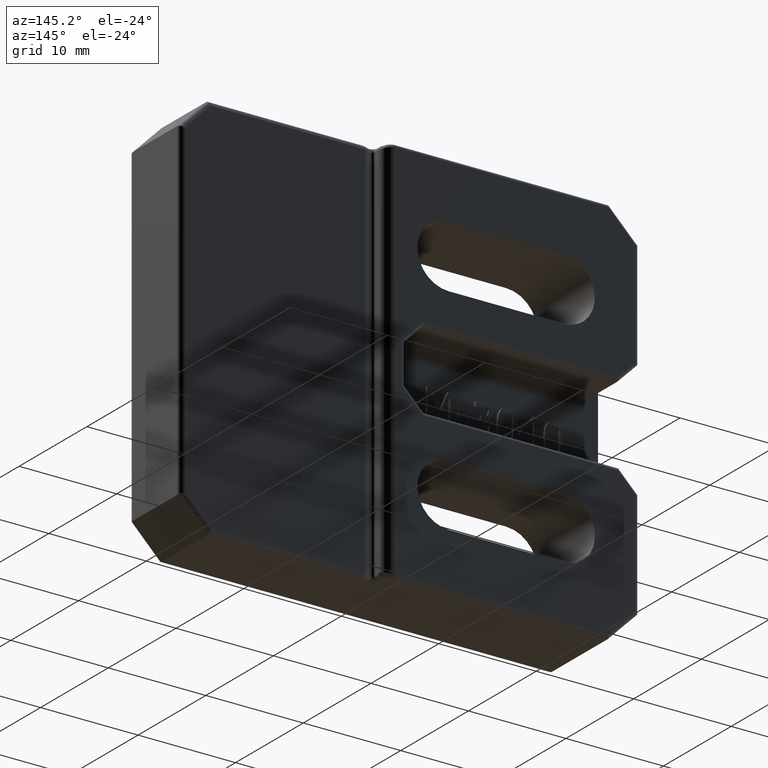
[diagram: clean part render]
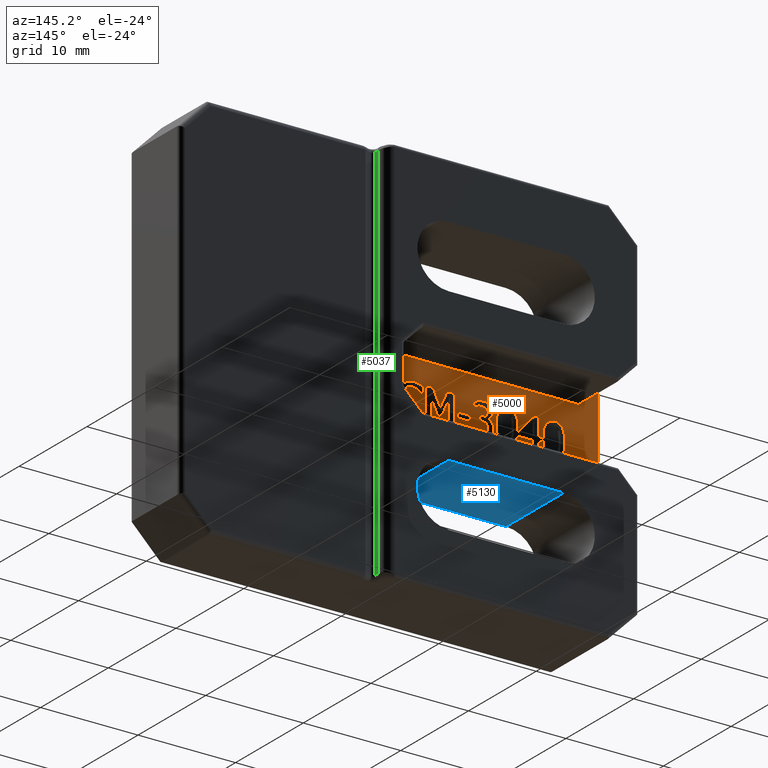
[diagram: same view with three faces highlighted in distinct colors, each labeled with its STEP entity id]
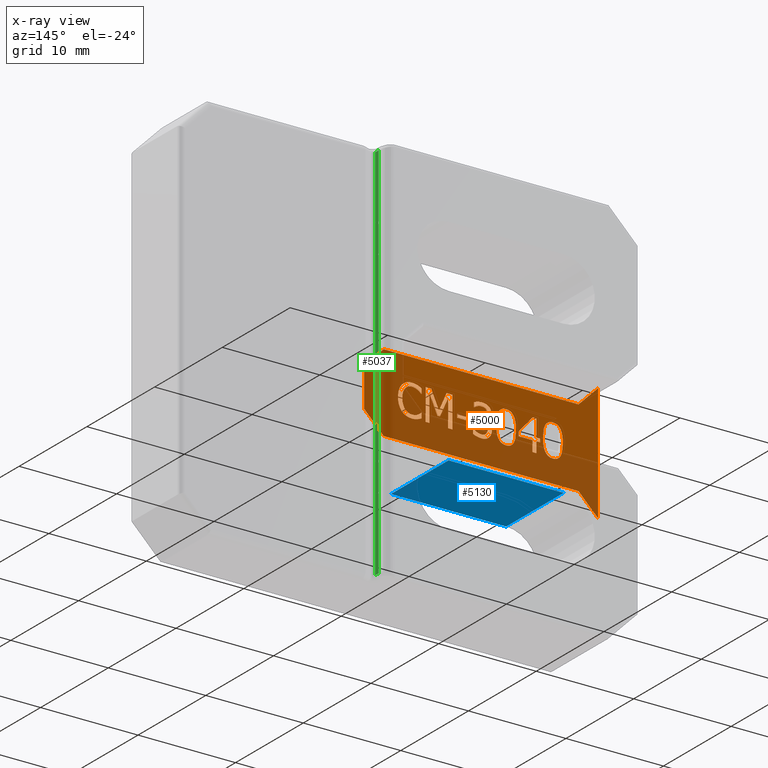
[diagram: x-ray of the same camera — body ghosted, the three highlighted faces saturated]
A machine part, auxiliary view with three faces highlighted in distinct colors.
The next image is the same camera in x-ray (body ghosted, the three faces saturated) — at least one of them is partly hidden behind the body in this view.
Their STEP definitions:

[orange] entity #5000 — the highlighted planar face has unit normal (0, -1, 0).
#65=FACE_BOUND('',#1956,.T.);
#66=FACE_BOUND('',#1957,.T.);
#67=FACE_BOUND('',#1958,.T.);
#68=FACE_BOUND('',#1959,.T.);
#69=FACE_BOUND('',#1960,.T.);
#70=FACE_BOUND('',#1961,.T.);
#71=FACE_BOUND('',#1962,.T.);
#97=B_SPLINE_CURVE_WITH_KNOTS('',2,(#6919,#6920,#6921,#6922),
 .UNSPECIFIED.,.F.,.F.,(3,1,3),(0.,1.,2.),.UNSPECIFIED.);
#99=B_SPLINE_CURVE_WITH_KNOTS('',2,(#6940,#6941,#6942,#6943),
 .UNSPECIFIED.,.F.,.F.,(3,1,3),(0.,1.,2.),.UNSPECIFIED.);
#101=B_SPLINE_CURVE_WITH_KNOTS('',2,(#6959,#6960,#6961,#6962),
 .UNSPECIFIED.,.F.,.F.,(3,1,3),(0.,1.,2.),.UNSPECIFIED.);
#103=B_SPLINE_CURVE_WITH_KNOTS('',2,(#6977,#6978,#6979,#6980),
 .UNSPECIFIED.,.F.,.F.,(3,1,3),(0.,1.,2.),.UNSPECIFIED.);
#121=B_SPLINE_CURVE_WITH_KNOTS('',2,(#7233,#7234,#7235,#7236),
 .UNSPECIFIED.,.F.,.F.,(3,1,3),(0.,1.,2.),.UNSPECIFIED.);
#123=B_SPLINE_CURVE_WITH_KNOTS('',2,(#7254,#7255,#7256,#7257),
 .UNSPECIFIED.,.F.,.F.,(3,1,3),(0.,1.,2.),.UNSPECIFIED.);
#125=B_SPLINE_CURVE_WITH_KNOTS('',2,(#7273,#7274,#7275,#7276),
 .UNSPECIFIED.,.F.,.F.,(3,1,3),(0.,1.,2.),.UNSPECIFIED.);
#127=B_SPLINE_CURVE_WITH_KNOTS('',2,(#7291,#7292,#7293,#7294),
 .UNSPECIFIED.,.F.,.F.,(3,1,3),(0.,1.,2.),.UNSPECIFIED.);
#129=B_SPLINE_CURVE_WITH_KNOTS('',2,(#7335,#7336,#7337,#7338),
 .UNSPECIFIED.,.F.,.F.,(3,1,3),(0.,1.,2.),.UNSPECIFIED.);
#131=B_SPLINE_CURVE_WITH_KNOTS('',2,(#7356,#7357,#7358,#7359),
 .UNSPECIFIED.,.F.,.F.,(3,1,3),(0.,1.,2.),.UNSPECIFIED.);
#133=B_SPLINE_CURVE_WITH_KNOTS('',2,(#7375,#7376,#7377,#7378),
 .UNSPECIFIED.,.F.,.F.,(3,1,3),(0.,1.,2.),.UNSPECIFIED.);
#135=B_SPLINE_CURVE_WITH_KNOTS('',2,(#7394,#7395,#7396,#7397),
 .UNSPECIFIED.,.F.,.F.,(3,1,3),(0.,1.,2.),.UNSPECIFIED.);
#137=B_SPLINE_CURVE_WITH_KNOTS('',2,(#7413,#7414,#7415,#7416),
 .UNSPECIFIED.,.F.,.F.,(3,1,3),(0.,1.,2.),.UNSPECIFIED.);
#139=B_SPLINE_CURVE_WITH_KNOTS('',2,(#7444,#7445,#7446,#7447),
 .UNSPECIFIED.,.F.,.F.,(3,1,3),(0.,1.,2.),.UNSPECIFIED.);
#141=B_SPLINE_CURVE_WITH_KNOTS('',2,(#7463,#7464,#7465,#7466),
 .UNSPECIFIED.,.F.,.F.,(3,1,3),(0.,1.,2.),.UNSPECIFIED.);
#143=B_SPLINE_CURVE_WITH_KNOTS('',2,(#7482,#7483,#7484,#7485),
 .UNSPECIFIED.,.F.,.F.,(3,1,3),(0.,1.,2.),.UNSPECIFIED.);
#145=B_SPLINE_CURVE_WITH_KNOTS('',2,(#7501,#7502,#7503,#7504),
 .UNSPECIFIED.,.F.,.F.,(3,1,3),(0.,1.,2.),.UNSPECIFIED.);
#147=B_SPLINE_CURVE_WITH_KNOTS('',2,(#7520,#7521,#7522,#7523),
 .UNSPECIFIED.,.F.,.F.,(3,1,3),(0.,1.,2.),.UNSPECIFIED.);
#149=B_SPLINE_CURVE_WITH_KNOTS('',2,(#7539,#7540,#7541,#7542),
 .UNSPECIFIED.,.F.,.F.,(3,1,3),(0.,1.,2.),.UNSPECIFIED.);
#151=B_SPLINE_CURVE_WITH_KNOTS('',2,(#7558,#7559,#7560,#7561),
 .UNSPECIFIED.,.F.,.F.,(3,1,3),(0.,1.,2.),.UNSPECIFIED.);
#153=B_SPLINE_CURVE_WITH_KNOTS('',2,(#7577,#7578,#7579,#7580),
 .UNSPECIFIED.,.F.,.F.,(3,1,3),(0.,1.,2.),.UNSPECIFIED.);
#155=B_SPLINE_CURVE_WITH_KNOTS('',2,(#7608,#7609,#7610,#7611),
 .UNSPECIFIED.,.F.,.F.,(3,1,3),(0.,1.,2.),.UNSPECIFIED.);
#157=B_SPLINE_CURVE_WITH_KNOTS('',2,(#7627,#7628,#7629,#7630),
 .UNSPECIFIED.,.F.,.F.,(3,1,3),(0.,1.,2.),.UNSPECIFIED.);
#159=B_SPLINE_CURVE_WITH_KNOTS('',2,(#7645,#7646,#7647,#7648),
 .UNSPECIFIED.,.F.,.F.,(3,1,3),(0.,1.,2.),.UNSPECIFIED.);
#161=B_SPLINE_CURVE_WITH_KNOTS('',2,(#7743,#7744,#7745,#7746),
 .UNSPECIFIED.,.F.,.F.,(3,1,3),(0.,1.,2.),.UNSPECIFIED.);
#163=B_SPLINE_CURVE_WITH_KNOTS('',2,(#7776,#7777,#7778,#7779),
 .UNSPECIFIED.,.F.,.F.,(3,1,3),(0.,1.,2.),.UNSPECIFIED.);
#165=B_SPLINE_CURVE_WITH_KNOTS('',2,(#7795,#7796,#7797,#7798),
 .UNSPECIFIED.,.F.,.F.,(3,1,3),(0.,1.,2.),.UNSPECIFIED.);
#167=B_SPLINE_CURVE_WITH_KNOTS('',2,(#7814,#7815,#7816,#7817),
 .UNSPECIFIED.,.F.,.F.,(3,1,3),(0.,1.,2.),.UNSPECIFIED.);
#169=B_SPLINE_CURVE_WITH_KNOTS('',2,(#7833,#7834,#7835,#7836),
 .UNSPECIFIED.,.F.,.F.,(3,1,3),(0.,1.,2.),.UNSPECIFIED.);
#171=B_SPLINE_CURVE_WITH_KNOTS('',2,(#7858,#7859,#7860,#7861),
 .UNSPECIFIED.,.F.,.F.,(3,1,3),(0.,1.,2.),.UNSPECIFIED.);
#173=B_SPLINE_CURVE_WITH_KNOTS('',2,(#7877,#7878,#7879,#7880),
 .UNSPECIFIED.,.F.,.F.,(3,1,3),(0.,1.,2.),.UNSPECIFIED.);
#175=B_SPLINE_CURVE_WITH_KNOTS('',2,(#7896,#7897,#7898,#7899),
 .UNSPECIFIED.,.F.,.F.,(3,1,3),(0.,1.,2.),.UNSPECIFIED.);
#177=B_SPLINE_CURVE_WITH_KNOTS('',2,(#7915,#7916,#7917,#7918),
 .UNSPECIFIED.,.F.,.F.,(3,1,3),(0.,1.,2.),.UNSPECIFIED.);
#179=B_SPLINE_CURVE_WITH_KNOTS('',2,(#7934,#7935,#7936,#7937),
 .UNSPECIFIED.,.F.,.F.,(3,1,3),(0.,1.,2.),.UNSPECIFIED.);
#181=B_SPLINE_CURVE_WITH_KNOTS('',2,(#7965,#7966,#7967,#7968),
 .UNSPECIFIED.,.F.,.F.,(3,1,3),(0.,1.,2.),.UNSPECIFIED.);
#183=B_SPLINE_CURVE_WITH_KNOTS('',2,(#7984,#7985,#7986,#7987),
 .UNSPECIFIED.,.F.,.F.,(3,1,3),(0.,1.,2.),.UNSPECIFIED.);
#185=B_SPLINE_CURVE_WITH_KNOTS('',2,(#8003,#8004,#8005,#8006),
 .UNSPECIFIED.,.F.,.F.,(3,1,3),(0.,1.,2.),.UNSPECIFIED.);
#187=B_SPLINE_CURVE_WITH_KNOTS('',2,(#8022,#8023,#8024,#8025),
 .UNSPECIFIED.,.F.,.F.,(3,1,3),(0.,1.,2.),.UNSPECIFIED.);
#189=B_SPLINE_CURVE_WITH_KNOTS('',2,(#8041,#8042,#8043,#8044),
 .UNSPECIFIED.,.F.,.F.,(3,1,3),(0.,1.,2.),.UNSPECIFIED.);
#191=B_SPLINE_CURVE_WITH_KNOTS('',2,(#8078,#8079,#8080,#8081),
 .UNSPECIFIED.,.F.,.F.,(3,1,3),(0.,1.,2.),.UNSPECIFIED.);
#193=B_SPLINE_CURVE_WITH_KNOTS('',2,(#8097,#8098,#8099,#8100),
 .UNSPECIFIED.,.F.,.F.,(3,1,3),(0.,1.,2.),.UNSPECIFIED.);
#195=B_SPLINE_CURVE_WITH_KNOTS('',2,(#8116,#8117,#8118,#8119),
 .UNSPECIFIED.,.F.,.F.,(3,1,3),(0.,1.,2.),.UNSPECIFIED.);
#197=B_SPLINE_CURVE_WITH_KNOTS('',2,(#8134,#8135,#8136,#8137),
 .UNSPECIFIED.,.F.,.F.,(3,1,3),(0.,1.,2.),.UNSPECIFIED.);
#334=PLANE('',#5258);
#476=LINE('',#7007,#993);
#480=LINE('',#7015,#997);
#483=LINE('',#7021,#1000);
#486=LINE('',#7027,#1003);
#489=LINE('',#7033,#1006);
#492=LINE('',#7039,#1009);
#495=LINE('',#7045,#1012);
#498=LINE('',#7051,#1015);
#501=LINE('',#7057,#1018);
#504=LINE('',#7063,#1021);
#507=LINE('',#7068,#1024);
#521=LINE('',#7303,#1038);
#525=LINE('',#7311,#1042);
#528=LINE('',#7317,#1045);
#531=LINE('',#7322,#1048);
#539=LINE('',#7425,#1056);
#542=LINE('',#7431,#1059);
#553=LINE('',#7589,#1070);
#556=LINE('',#7595,#1073);
#561=LINE('',#7657,#1078);
#565=LINE('',#7665,#1082);
#568=LINE('',#7671,#1085);
#571=LINE('',#7677,#1088);
#574=LINE('',#7683,#1091);
#577=LINE('',#7689,#1094);
#580=LINE('',#7695,#1097);
#583=LINE('',#7701,#1100);
#586=LINE('',#7707,#1103);
#589=LINE('',#7713,#1106);
#592=LINE('',#7719,#1109);
#595=LINE('',#7725,#1112);
#598=LINE('',#7730,#1115);
#602=LINE('',#7757,#1119);
#605=LINE('',#7763,#1122);
#612=LINE('',#7845,#1129);
#620=LINE('',#7946,#1137);
#623=LINE('',#7952,#1140);
#631=LINE('',#8053,#1148);
#634=LINE('',#8059,#1151);
#637=LINE('',#8065,#1154);
#643=LINE('',#8146,#1160);
#644=LINE('',#8148,#1161);
#645=LINE('',#8150,#1162);
#646=LINE('',#8152,#1163);
#647=LINE('',#8154,#1164);
#648=LINE('',#8156,#1165);
#649=LINE('',#8158,#1166);
#650=LINE('',#8159,#1167);
#993=VECTOR('',#5643,1.09951375176107);
#997=VECTOR('',#5649,0.4123176569104);
#1000=VECTOR('',#5654,1.09951375176107);
#1003=VECTOR('',#5659,1.41329008186269);
#1006=VECTOR('',#5664,0.451215549071757);
#1009=VECTOR('',#5669,2.18383173298876);
#1012=VECTOR('',#5674,0.3941653072351);
#1015=VECTOR('',#5679,1.75559153288264);
#1018=VECTOR('',#5684,0.38119934318131);
#1021=VECTOR('',#5689,0.344894643830713);
#1024=VECTOR('',#5694,0.38119934318131);
#1038=VECTOR('',#5714,0.388978921613585);
#1042=VECTOR('',#5720,1.2110210426236);
#1045=VECTOR('',#5725,0.388978921613585);
#1048=VECTOR('',#5730,1.2110210426236);
#1056=VECTOR('',#5742,0.513452176529932);
#1059=VECTOR('',#5747,0.0337115065398996);
#1070=VECTOR('',#5760,0.0311183137290993);
#1073=VECTOR('',#5765,0.508265790908414);
#1078=VECTOR('',#5774,2.75656395783494);
#1082=VECTOR('',#5780,2.05241504698087);
#1085=VECTOR('',#5785,0.259319281075703);
#1088=VECTOR('',#5790,2.04926231242746);
#1091=VECTOR('',#5795,2.75656395783494);
#1094=VECTOR('',#5800,0.396758500045897);
#1097=VECTOR('',#5805,3.19999992847442);
#1100=VECTOR('',#5810,0.5808751896097);
#1103=VECTOR('',#5815,1.95237110724582);
#1106=VECTOR('',#5820,1.9419066835841);
#1109=VECTOR('',#5825,0.591247960852601);
#1112=VECTOR('',#5830,3.19999992847442);
#1115=VECTOR('',#5835,0.425283620964201);
#1119=VECTOR('',#5843,0.0259319281076031);
#1122=VECTOR('',#5848,0.45380874188251);
#1129=VECTOR('',#5857,0.031118313729089);
#1137=VECTOR('',#5867,0.45380874188252);
#1140=VECTOR('',#5872,0.0311183137291016);
#1148=VECTOR('',#5882,0.181523496753002);
#1151=VECTOR('',#5887,0.355267415073741);
#1154=VECTOR('',#5892,0.142625604591702);
#1160=VECTOR('',#5902,2.82842712474619);
#1161=VECTOR('',#5903,20.);
#1162=VECTOR('',#5904,2.82842712474619);
#1163=VECTOR('',#5905,4.);
#1164=VECTOR('',#5906,2.82842712474619);
#1165=VECTOR('',#5907,20.);
#1166=VECTOR('',#5908,2.8284271247462);
#1167=VECTOR('',#5909,12.);
#1664=FACE_OUTER_BOUND('',#1955,.T.);
#1955=EDGE_LOOP('',(#3993,#3994,#3995,#3996,#3997,#3998,#3999,#4000));
#1956=EDGE_LOOP('',(#4001,#4002,#4003,#4004,#4005,#4006,#4007,#4008,#4009,
#4010,#4011,#4012,#4013,#4014,#4015,#4016,#4017,#4018,#4019,#4020,#4021,
#4022,#4023,#4024,#4025,#4026,#4027));
#1957=EDGE_LOOP('',(#4028,#4029,#4030,#4031,#4032,#4033,#4034,#4035,#4036,
#4037,#4038,#4039,#4040));
#1958=EDGE_LOOP('',(#4041,#4042,#4043,#4044,#4045,#4046,#4047,#4048,#4049,
#4050,#4051,#4052,#4053,#4054,#4055,#4056,#4057,#4058,#4059,#4060));
#1959=EDGE_LOOP('',(#4061,#4062,#4063,#4064));
#1960=EDGE_LOOP('',(#4065,#4066,#4067,#4068));
#1961=EDGE_LOOP('',(#4069,#4070,#4071,#4072,#4073,#4074,#4075,#4076,#4077,
#4078,#4079));
#1962=EDGE_LOOP('',(#4080,#4081,#4082,#4083));
#2224=VERTEX_POINT('',#6917);
#2225=VERTEX_POINT('',#6918);
#2228=VERTEX_POINT('',#6939);
#2230=VERTEX_POINT('',#6958);
#2238=VERTEX_POINT('',#7005);
#2239=VERTEX_POINT('',#7006);
#2242=VERTEX_POINT('',#7014);
#2244=VERTEX_POINT('',#7020);
#2246=VERTEX_POINT('',#7026);
#2248=VERTEX_POINT('',#7032);
#2250=VERTEX_POINT('',#7038);
#2252=VERTEX_POINT('',#7044);
#2254=VERTEX_POINT('',#7050);
#2256=VERTEX_POINT('',#7056);
#2258=VERTEX_POINT('',#7062);
#2276=VERTEX_POINT('',#7231);
#2277=VERTEX_POINT('',#7232);
#2280=VERTEX_POINT('',#7253);
#2282=VERTEX_POINT('',#7272);
#2284=VERTEX_POINT('',#7301);
#2285=VERTEX_POINT('',#7302);
#2288=VERTEX_POINT('',#7310);
#2290=VERTEX_POINT('',#7316);
#2292=VERTEX_POINT('',#7333);
#2293=VERTEX_POINT('',#7334);
#2296=VERTEX_POINT('',#7355);
#2298=VERTEX_POINT('',#7374);
#2300=VERTEX_POINT('',#7393);
#2302=VERTEX_POINT('',#7412);
#2304=VERTEX_POINT('',#7424);
#2306=VERTEX_POINT('',#7430);
#2308=VERTEX_POINT('',#7443);
#2310=VERTEX_POINT('',#7462);
#2312=VERTEX_POINT('',#7481);
#2314=VERTEX_POINT('',#7500);
#2316=VERTEX_POINT('',#7519);
#2318=VERTEX_POINT('',#7538);
#2320=VERTEX_POINT('',#7557);
#2322=VERTEX_POINT('',#7576);
#2324=VERTEX_POINT('',#7588);
#2326=VERTEX_POINT('',#7594);
#2328=VERTEX_POINT('',#7607);
#2330=VERTEX_POINT('',#7626);
#2332=VERTEX_POINT('',#7655);
#2333=VERTEX_POINT('',#7656);
#2336=VERTEX_POINT('',#7664);
#2338=VERTEX_POINT('',#7670);
#2340=VERTEX_POINT('',#7676);
#2342=VERTEX_POINT('',#7682);
#2344=VERTEX_POINT('',#7688);
#2346=VERTEX_POINT('',#7694);
#2348=VERTEX_POINT('',#7700);
#2350=VERTEX_POINT('',#7706);
#2352=VERTEX_POINT('',#7712);
#2354=VERTEX_POINT('',#7718);
#2356=VERTEX_POINT('',#7724);
#2358=VERTEX_POINT('',#7741);
#2359=VERTEX_POINT('',#7742);
#2362=VERTEX_POINT('',#7756);
#2364=VERTEX_POINT('',#7762);
#2366=VERTEX_POINT('',#7775);
#2368=VERTEX_POINT('',#7794);
#2370=VERTEX_POINT('',#7813);
#2372=VERTEX_POINT('',#7832);
#2374=VERTEX_POINT('',#7844);
#2376=VERTEX_POINT('',#7857);
#2378=VERTEX_POINT('',#7876);
#2380=VERTEX_POINT('',#7895);
#2382=VERTEX_POINT('',#7914);
#2384=VERTEX_POINT('',#7933);
#2386=VERTEX_POINT('',#7945);
#2388=VERTEX_POINT('',#7951);
#2390=VERTEX_POINT('',#7964);
#2392=VERTEX_POINT('',#7983);
#2394=VERTEX_POINT('',#8002);
#2396=VERTEX_POINT('',#8021);
#2398=VERTEX_POINT('',#8040);
#2400=VERTEX_POINT('',#8052);
#2402=VERTEX_POINT('',#8058);
#2404=VERTEX_POINT('',#8064);
#2406=VERTEX_POINT('',#8077);
#2408=VERTEX_POINT('',#8096);
#2410=VERTEX_POINT('',#8115);
#2412=VERTEX_POINT('',#8144);
#2413=VERTEX_POINT('',#8145);
#2414=VERTEX_POINT('',#8147);
#2415=VERTEX_POINT('',#8149);
#2416=VERTEX_POINT('',#8151);
#2417=VERTEX_POINT('',#8153);
#2418=VERTEX_POINT('',#8155);
#2419=VERTEX_POINT('',#8157);
#2724=EDGE_CURVE('',#2224,#2225,#97,.T.);
#2728=EDGE_CURVE('',#2225,#2228,#99,.T.);
#2731=EDGE_CURVE('',#2228,#2230,#101,.T.);
#2734=EDGE_CURVE('',#2230,#2224,#103,.T.);
#2745=EDGE_CURVE('',#2238,#2239,#476,.T.);
#2749=EDGE_CURVE('',#2239,#2242,#480,.T.);
#2752=EDGE_CURVE('',#2242,#2244,#483,.T.);
#2755=EDGE_CURVE('',#2244,#2246,#486,.T.);
#2758=EDGE_CURVE('',#2246,#2248,#489,.T.);
#2761=EDGE_CURVE('',#2248,#2250,#492,.T.);
#2764=EDGE_CURVE('',#2250,#2252,#495,.T.);
#2767=EDGE_CURVE('',#2252,#2254,#498,.T.);
#2770=EDGE_CURVE('',#2254,#2256,#501,.T.);
#2773=EDGE_CURVE('',#2256,#2258,#504,.T.);
#2776=EDGE_CURVE('',#2258,#2238,#507,.T.);
#2802=EDGE_CURVE('',#2276,#2277,#121,.T.);
#2806=EDGE_CURVE('',#2277,#2280,#123,.T.);
#2809=EDGE_CURVE('',#2280,#2282,#125,.T.);
#2812=EDGE_CURVE('',#2282,#2276,#127,.T.);
#2814=EDGE_CURVE('',#2284,#2285,#521,.T.);
#2818=EDGE_CURVE('',#2285,#2288,#525,.T.);
#2821=EDGE_CURVE('',#2288,#2290,#528,.T.);
#2824=EDGE_CURVE('',#2290,#2284,#531,.T.);
#2826=EDGE_CURVE('',#2292,#2293,#129,.T.);
#2830=EDGE_CURVE('',#2293,#2296,#131,.T.);
#2833=EDGE_CURVE('',#2296,#2298,#133,.T.);
#2836=EDGE_CURVE('',#2298,#2300,#135,.T.);
#2839=EDGE_CURVE('',#2300,#2302,#137,.T.);
#2842=EDGE_CURVE('',#2302,#2304,#539,.T.);
#2845=EDGE_CURVE('',#2304,#2306,#542,.T.);
#2848=EDGE_CURVE('',#2306,#2308,#139,.T.);
#2851=EDGE_CURVE('',#2308,#2310,#141,.T.);
#2854=EDGE_CURVE('',#2310,#2312,#143,.T.);
#2857=EDGE_CURVE('',#2312,#2314,#145,.T.);
#2860=EDGE_CURVE('',#2314,#2316,#147,.T.);
#2863=EDGE_CURVE('',#2316,#2318,#149,.T.);
#2866=EDGE_CURVE('',#2318,#2320,#151,.T.);
#2869=EDGE_CURVE('',#2320,#2322,#153,.T.);
#2872=EDGE_CURVE('',#2322,#2324,#553,.T.);
#2875=EDGE_CURVE('',#2324,#2326,#556,.T.);
#2878=EDGE_CURVE('',#2326,#2328,#155,.T.);
#2881=EDGE_CURVE('',#2328,#2330,#157,.T.);
#2884=EDGE_CURVE('',#2330,#2292,#159,.T.);
#2886=EDGE_CURVE('',#2332,#2333,#561,.T.);
#2890=EDGE_CURVE('',#2333,#2336,#565,.T.);
#2893=EDGE_CURVE('',#2336,#2338,#568,.T.);
#2896=EDGE_CURVE('',#2338,#2340,#571,.T.);
#2899=EDGE_CURVE('',#2340,#2342,#574,.T.);
#2902=EDGE_CURVE('',#2342,#2344,#577,.T.);
#2905=EDGE_CURVE('',#2344,#2346,#580,.T.);
#2908=EDGE_CURVE('',#2346,#2348,#583,.T.);
#2911=EDGE_CURVE('',#2348,#2350,#586,.T.);
#2914=EDGE_CURVE('',#2350,#2352,#589,.T.);
#2917=EDGE_CURVE('',#2352,#2354,#592,.T.);
#2920=EDGE_CURVE('',#2354,#2356,#595,.T.);
#2923=EDGE_CURVE('',#2356,#2332,#598,.T.);
#2925=EDGE_CURVE('',#2358,#2359,#161,.T.);
#2929=EDGE_CURVE('',#2359,#2362,#602,.T.);
#2932=EDGE_CURVE('',#2362,#2364,#605,.T.);
#2935=EDGE_CURVE('',#2364,#2366,#163,.T.);
#2938=EDGE_CURVE('',#2366,#2368,#165,.T.);
#2941=EDGE_CURVE('',#2368,#2370,#167,.T.);
#2944=EDGE_CURVE('',#2370,#2372,#169,.T.);
#2947=EDGE_CURVE('',#2372,#2374,#612,.T.);
#2950=EDGE_CURVE('',#2374,#2376,#171,.T.);
#2953=EDGE_CURVE('',#2376,#2378,#173,.T.);
#2956=EDGE_CURVE('',#2378,#2380,#175,.T.);
#2959=EDGE_CURVE('',#2380,#2382,#177,.T.);
#2962=EDGE_CURVE('',#2382,#2384,#179,.T.);
#2965=EDGE_CURVE('',#2384,#2386,#620,.T.);
#2968=EDGE_CURVE('',#2386,#2388,#623,.T.);
#2971=EDGE_CURVE('',#2388,#2390,#181,.T.);
#2974=EDGE_CURVE('',#2390,#2392,#183,.T.);
#2977=EDGE_CURVE('',#2392,#2394,#185,.T.);
#2980=EDGE_CURVE('',#2394,#2396,#187,.T.);
#2983=EDGE_CURVE('',#2396,#2398,#189,.T.);
#2986=EDGE_CURVE('',#2398,#2400,#631,.T.);
#2989=EDGE_CURVE('',#2400,#2402,#634,.T.);
#2992=EDGE_CURVE('',#2402,#2404,#637,.T.);
#2995=EDGE_CURVE('',#2404,#2406,#191,.T.);
#2998=EDGE_CURVE('',#2406,#2408,#193,.T.);
#3001=EDGE_CURVE('',#2408,#2410,#195,.T.);
#3004=EDGE_CURVE('',#2410,#2358,#197,.T.);
#3006=EDGE_CURVE('',#2412,#2413,#643,.T.);
#3007=EDGE_CURVE('',#2414,#2412,#644,.T.);
#3008=EDGE_CURVE('',#2415,#2414,#645,.T.);
#3009=EDGE_CURVE('',#2416,#2415,#646,.T.);
#3010=EDGE_CURVE('',#2417,#2416,#647,.T.);
#3011=EDGE_CURVE('',#2418,#2417,#648,.T.);
#3012=EDGE_CURVE('',#2419,#2418,#649,.T.);
#3013=EDGE_CURVE('',#2413,#2419,#650,.T.);
#3993=ORIENTED_EDGE('',*,*,#3006,.F.);
#3994=ORIENTED_EDGE('',*,*,#3007,.F.);
#3995=ORIENTED_EDGE('',*,*,#3008,.F.);
#3996=ORIENTED_EDGE('',*,*,#3009,.F.);
#3997=ORIENTED_EDGE('',*,*,#3010,.F.);
#3998=ORIENTED_EDGE('',*,*,#3011,.F.);
#3999=ORIENTED_EDGE('',*,*,#3012,.F.);
#4000=ORIENTED_EDGE('',*,*,#3013,.F.);
#4001=ORIENTED_EDGE('',*,*,#2925,.T.);
#4002=ORIENTED_EDGE('',*,*,#2929,.T.);
#4003=ORIENTED_EDGE('',*,*,#2932,.T.);
#4004=ORIENTED_EDGE('',*,*,#2935,.T.);
#4005=ORIENTED_EDGE('',*,*,#2938,.T.);
#4006=ORIENTED_EDGE('',*,*,#2941,.T.);
#4007=ORIENTED_EDGE('',*,*,#2944,.T.);
#4008=ORIENTED_EDGE('',*,*,#2947,.T.);
#4009=ORIENTED_EDGE('',*,*,#2950,.T.);
#4010=ORIENTED_EDGE('',*,*,#2953,.T.);
#4011=ORIENTED_EDGE('',*,*,#2956,.T.);
#4012=ORIENTED_EDGE('',*,*,#2959,.T.);
#4013=ORIENTED_EDGE('',*,*,#2962,.T.);
#4014=ORIENTED_EDGE('',*,*,#2965,.T.);
#4015=ORIENTED_EDGE('',*,*,#2968,.T.);
#4016=ORIENTED_EDGE('',*,*,#2971,.T.);
#4017=ORIENTED_EDGE('',*,*,#2974,.T.);
#4018=ORIENTED_EDGE('',*,*,#2977,.T.);
#4019=ORIENTED_EDGE('',*,*,#2980,.T.);
#4020=ORIENTED_EDGE('',*,*,#2983,.T.);
#4021=ORIENTED_EDGE('',*,*,#2986,.T.);
#4022=ORIENTED_EDGE('',*,*,#2989,.T.);
#4023=ORIENTED_EDGE('',*,*,#2992,.T.);
#4024=ORIENTED_EDGE('',*,*,#2995,.T.);
#4025=ORIENTED_EDGE('',*,*,#2998,.T.);
#4026=ORIENTED_EDGE('',*,*,#3001,.T.);
#4027=ORIENTED_EDGE('',*,*,#3004,.T.);
#4028=ORIENTED_EDGE('',*,*,#2886,.T.);
#4029=ORIENTED_EDGE('',*,*,#2890,.T.);
#4030=ORIENTED_EDGE('',*,*,#2893,.T.);
#4031=ORIENTED_EDGE('',*,*,#2896,.T.);
#4032=ORIENTED_EDGE('',*,*,#2899,.T.);
#4033=ORIENTED_EDGE('',*,*,#2902,.T.);
#4034=ORIENTED_EDGE('',*,*,#2905,.T.);
#4035=ORIENTED_EDGE('',*,*,#2908,.T.);
#4036=ORIENTED_EDGE('',*,*,#2911,.T.);
#4037=ORIENTED_EDGE('',*,*,#2914,.T.);
#4038=ORIENTED_EDGE('',*,*,#2917,.T.);
#4039=ORIENTED_EDGE('',*,*,#2920,.T.);
#4040=ORIENTED_EDGE('',*,*,#2923,.T.);
#4041=ORIENTED_EDGE('',*,*,#2826,.T.);
#4042=ORIENTED_EDGE('',*,*,#2830,.T.);
#4043=ORIENTED_EDGE('',*,*,#2833,.T.);
#4044=ORIENTED_EDGE('',*,*,#2836,.T.);
#4045=ORIENTED_EDGE('',*,*,#2839,.T.);
#4046=ORIENTED_EDGE('',*,*,#2842,.T.);
#4047=ORIENTED_EDGE('',*,*,#2845,.T.);
#4048=ORIENTED_EDGE('',*,*,#2848,.T.);
#4049=ORIENTED_EDGE('',*,*,#2851,.T.);
#4050=ORIENTED_EDGE('',*,*,#2854,.T.);
#4051=ORIENTED_EDGE('',*,*,#2857,.T.);
#4052=ORIENTED_EDGE('',*,*,#2860,.T.);
#4053=ORIENTED_EDGE('',*,*,#2863,.T.);
#4054=ORIENTED_EDGE('',*,*,#2866,.T.);
#4055=ORIENTED_EDGE('',*,*,#2869,.T.);
#4056=ORIENTED_EDGE('',*,*,#2872,.T.);
#4057=ORIENTED_EDGE('',*,*,#2875,.T.);
#4058=ORIENTED_EDGE('',*,*,#2878,.T.);
#4059=ORIENTED_EDGE('',*,*,#2881,.T.);
#4060=ORIENTED_EDGE('',*,*,#2884,.T.);
#4061=ORIENTED_EDGE('',*,*,#2814,.T.);
#4062=ORIENTED_EDGE('',*,*,#2818,.T.);
#4063=ORIENTED_EDGE('',*,*,#2821,.T.);
#4064=ORIENTED_EDGE('',*,*,#2824,.T.);
#4065=ORIENTED_EDGE('',*,*,#2802,.T.);
#4066=ORIENTED_EDGE('',*,*,#2806,.T.);
#4067=ORIENTED_EDGE('',*,*,#2809,.T.);
#4068=ORIENTED_EDGE('',*,*,#2812,.T.);
#4069=ORIENTED_EDGE('',*,*,#2745,.T.);
#4070=ORIENTED_EDGE('',*,*,#2749,.T.);
#4071=ORIENTED_EDGE('',*,*,#2752,.T.);
#4072=ORIENTED_EDGE('',*,*,#2755,.T.);
#4073=ORIENTED_EDGE('',*,*,#2758,.T.);
#4074=ORIENTED_EDGE('',*,*,#2761,.T.);
#4075=ORIENTED_EDGE('',*,*,#2764,.T.);
#4076=ORIENTED_EDGE('',*,*,#2767,.T.);
#4077=ORIENTED_EDGE('',*,*,#2770,.T.);
#4078=ORIENTED_EDGE('',*,*,#2773,.T.);
#4079=ORIENTED_EDGE('',*,*,#2776,.T.);
#4080=ORIENTED_EDGE('',*,*,#2724,.T.);
#4081=ORIENTED_EDGE('',*,*,#2728,.T.);
#4082=ORIENTED_EDGE('',*,*,#2731,.T.);
#4083=ORIENTED_EDGE('',*,*,#2734,.T.);
#5000=ADVANCED_FACE('',(#1664,#65,#66,#67,#68,#69,#70,#71),#334,.F.);
#5258=AXIS2_PLACEMENT_3D('',#8143,#5900,#5901);
#5643=DIRECTION('',(1.00974000811444E-15,8.6233585068757E-32,-1.));
#5649=DIRECTION('',(1.,8.5401771125012E-17,0.));
#5654=DIRECTION('',(-1.00974000811444E-15,-8.6233585068757E-32,1.));
#5659=DIRECTION('',(1.,8.5401771125012E-17,0.));
#5664=DIRECTION('',(0.,0.,1.));
#5669=DIRECTION('',(-0.655472859888769,-5.59785431588777E-17,0.755218729871842));
#5674=DIRECTION('',(-1.,-8.5401771125012E-17,0.));
#5679=DIRECTION('',(0.,0.,-1.));
#5684=DIRECTION('',(-1.,-8.5401771125012E-17,0.));
#5689=DIRECTION('',(0.,0.,-1.));
#5694=DIRECTION('',(1.,8.5401771125012E-17,0.));
#5714=DIRECTION('',(0.,0.,1.));
#5720=DIRECTION('',(-1.,-8.5401771125012E-17,0.));
#5725=DIRECTION('',(0.,0.,-1.));
#5730=DIRECTION('',(1.,8.5401771125012E-17,0.));
#5742=DIRECTION('',(0.,0.,-1.));
#5747=DIRECTION('',(1.,8.5401771125012E-17,0.));
#5760=DIRECTION('',(-1.,-8.5401771125012E-17,0.));
#5765=DIRECTION('',(0.,0.,-1.));
#5774=DIRECTION('',(0.,0.,1.));
#5780=DIRECTION('',(0.406841728378542,3.47450041710886E-17,-0.913498663408962));
#5785=DIRECTION('',(1.,8.5401771125012E-17,0.));
#5790=DIRECTION('',(0.403671360964848,3.44742491788421E-17,0.914904056356068));
#5795=DIRECTION('',(0.,0.,-1.));
#5800=DIRECTION('',(1.,8.5401771125012E-17,0.));
#5805=DIRECTION('',(0.,0.,1.));
#5810=DIRECTION('',(-1.,-8.5401771125012E-17,0.));
#5815=DIRECTION('',(-0.409094040958197,-3.49373556545182E-17,-0.91249222772169));
#5820=DIRECTION('',(-0.397944692264713,-3.39851815292043E-17,0.917409408006231));
#5825=DIRECTION('',(-1.,-8.5401771125012E-17,0.));
#5830=DIRECTION('',(0.,0.,-1.));
#5835=DIRECTION('',(1.,8.5401771125012E-17,0.));
#5843=DIRECTION('',(1.,8.5401771125012E-17,0.));
#5848=DIRECTION('',(0.,0.,1.));
#5857=DIRECTION('',(0.,0.,-1.));
#5867=DIRECTION('',(0.,0.,1.));
#5872=DIRECTION('',(-1.,-8.5401771125012E-17,0.));
#5882=DIRECTION('',(1.,8.5401771125012E-17,0.));
#5887=DIRECTION('',(0.,0.,1.));
#5892=DIRECTION('',(-1.,-8.5401771125012E-17,0.));
#5900=DIRECTION('center_axis',(8.5401771125012E-17,-1.,0.));
#5901=DIRECTION('ref_axis',(0.,0.,-1.));
#5902=DIRECTION('',(-0.707106781186547,-6.03881714878374E-17,0.707106781186548));
#5903=DIRECTION('',(-1.,-8.5401771125012E-17,-1.11022302462516E-16));
#5904=DIRECTION('',(-0.707106781186547,-6.03881714878374E-17,0.707106781186547));
#5905=DIRECTION('',(0.,0.,1.));
#5906=DIRECTION('',(0.707106781186548,6.03881714878375E-17,0.707106781186547));
#5907=DIRECTION('',(1.,8.5401771125012E-17,2.22044604925031E-16));
#5908=DIRECTION('',(0.707106781186549,6.03881714878376E-17,0.707106781186546));
#5909=DIRECTION('',(0.,0.,-1.));
#6917=CARTESIAN_POINT('',(4.62957885630514,3.,-1.66742311235867));
#6918=CARTESIAN_POINT('',(5.65389001655424,3.,-0.00259332785252481));
#6919=CARTESIAN_POINT('Ctrl Pts',(4.62957885630514,3.,-1.66742311235867));
#6920=CARTESIAN_POINT('Ctrl Pts',(5.15859018969961,3.,-1.66742311235867));
#6921=CARTESIAN_POINT('Ctrl Pts',(5.65389001655424,3.,-0.845380991348628));
#6922=CARTESIAN_POINT('Ctrl Pts',(5.65389001655424,3.,-0.00259332785252475));
#6939=CARTESIAN_POINT('',(4.62957885630514,3.,1.66482964946438));
#6940=CARTESIAN_POINT('Ctrl Pts',(5.65389001655424,3.,-0.00259332785252475));
#6941=CARTESIAN_POINT('Ctrl Pts',(5.65389001655424,3.,0.86353307094039));
#6942=CARTESIAN_POINT('Ctrl Pts',(5.1534038040781,3.,1.66482964946438));
#6943=CARTESIAN_POINT('Ctrl Pts',(4.62957885630514,3.,1.66482964946438));
#6958=CARTESIAN_POINT('',(3.60786088886679,3.,-1.35041768878352E-7));
#6959=CARTESIAN_POINT('Ctrl Pts',(4.62957885630514,3.,1.66482964946438));
#6960=CARTESIAN_POINT('Ctrl Pts',(4.10316071572142,3.,1.66482964946438));
#6961=CARTESIAN_POINT('Ctrl Pts',(3.60786088886679,3.,0.835007950022062));
#6962=CARTESIAN_POINT('Ctrl Pts',(3.60786088886679,3.,-1.35041768878352E-7));
#6977=CARTESIAN_POINT('Ctrl Pts',(3.60786088886679,3.,-1.35041768878352E-7));
#6978=CARTESIAN_POINT('Ctrl Pts',(3.60786088886679,3.,-0.860940148213172));
#6979=CARTESIAN_POINT('Ctrl Pts',(4.10834710134294,3.,-1.66742311235867));
#6980=CARTESIAN_POINT('Ctrl Pts',(4.62957885630514,3.,-1.66742311235867));
#7005=CARTESIAN_POINT('',(6.32293376172961,3.,-0.500486347517914));
#7006=CARTESIAN_POINT('',(6.32293376172961,3.,-1.60000009927898));
#7007=CARTESIAN_POINT('',(6.32293376172961,3.,-0.800000049639493));
#7014=CARTESIAN_POINT('',(6.73525141864001,3.,-1.60000009927898));
#7015=CARTESIAN_POINT('',(8.65454658962296,3.,-1.60000009927898));
#7020=CARTESIAN_POINT('',(6.73525141864001,3.,-0.500486347517914));
#7021=CARTESIAN_POINT('',(6.73525141864001,3.,-0.250243173758959));
#7026=CARTESIAN_POINT('',(8.1485415005027,3.,-0.500486347517914));
#7027=CARTESIAN_POINT('',(9.3611916305543,3.,-0.500486347517914));
#7032=CARTESIAN_POINT('',(8.1485415005027,3.,-0.0492707984461571));
#7033=CARTESIAN_POINT('',(8.1485415005027,3.,-0.0246353992230786));
#7038=CARTESIAN_POINT('',(6.71709906896471,3.,1.59999982919544));
#7039=CARTESIAN_POINT('',(7.94163380186737,3.,0.18912285432933));
#7044=CARTESIAN_POINT('',(6.32293376172961,3.,1.59999982919544));
#7045=CARTESIAN_POINT('',(8.44838776116775,3.,1.59999982919544));
#7050=CARTESIAN_POINT('',(6.32293376172961,3.,-0.155591703687201));
#7051=CARTESIAN_POINT('',(6.32293376172961,3.,-0.0777958518436006));
#7056=CARTESIAN_POINT('',(5.9417344185483,3.,-0.155591703687201));
#7057=CARTESIAN_POINT('',(8.2577880895771,3.,-0.155591703687201));
#7062=CARTESIAN_POINT('',(5.9417344185483,3.,-0.500486347517914));
#7063=CARTESIAN_POINT('',(5.9417344185483,3.,-0.250243173758957));
#7068=CARTESIAN_POINT('',(8.44838776116775,3.,-0.500486347517914));
#7231=CARTESIAN_POINT('',(9.43217194182753,3.,-1.66742311235867));
#7232=CARTESIAN_POINT('',(10.4564831020766,3.,-0.00259332785252481));
#7233=CARTESIAN_POINT('Ctrl Pts',(9.43217194182753,3.,-1.66742311235867));
#7234=CARTESIAN_POINT('Ctrl Pts',(9.96118327522201,3.,-1.66742311235867));
#7235=CARTESIAN_POINT('Ctrl Pts',(10.4564831020766,3.,-0.845380991348628));
#7236=CARTESIAN_POINT('Ctrl Pts',(10.4564831020766,3.,-0.00259332785252475));
#7253=CARTESIAN_POINT('',(9.43217194182753,3.,1.66482964946438));
#7254=CARTESIAN_POINT('Ctrl Pts',(10.4564831020766,3.,-0.00259332785252475));
#7255=CARTESIAN_POINT('Ctrl Pts',(10.4564831020766,3.,0.86353307094039));
#7256=CARTESIAN_POINT('Ctrl Pts',(9.95599688960049,3.,1.66482964946438));
#7257=CARTESIAN_POINT('Ctrl Pts',(9.43217194182753,3.,1.66482964946438));
#7272=CARTESIAN_POINT('',(8.41045397438918,3.,-1.35041768878352E-7));
#7273=CARTESIAN_POINT('Ctrl Pts',(9.43217194182753,3.,1.66482964946438));
#7274=CARTESIAN_POINT('Ctrl Pts',(8.90575380124382,3.,1.66482964946438));
#7275=CARTESIAN_POINT('Ctrl Pts',(8.41045397438918,3.,0.835007950022062));
#7276=CARTESIAN_POINT('Ctrl Pts',(8.41045397438918,3.,-1.35041768878352E-7));
#7291=CARTESIAN_POINT('Ctrl Pts',(8.41045397438918,3.,-1.35041768878352E-7));
#7292=CARTESIAN_POINT('Ctrl Pts',(8.41045397438918,3.,-0.860940148213172));
#7293=CARTESIAN_POINT('Ctrl Pts',(8.91094018686533,3.,-1.66742311235867));
#7294=CARTESIAN_POINT('Ctrl Pts',(9.43217194182753,3.,-1.66742311235867));
#7301=CARTESIAN_POINT('',(14.4396272593997,3.,-0.39416544227687));
#7302=CARTESIAN_POINT('',(14.4396272593997,3.,-0.00518652066328507));
#7303=CARTESIAN_POINT('',(14.4396272593997,3.,-0.00259326033164253));
#7310=CARTESIAN_POINT('',(13.2286062167761,3.,-0.00518652066328507));
#7311=CARTESIAN_POINT('',(11.901223988691,3.,-0.00518652066328507));
#7316=CARTESIAN_POINT('',(13.2286062167761,3.,-0.39416544227687));
#7317=CARTESIAN_POINT('',(13.2286062167761,3.,-0.197082721138435));
#7322=CARTESIAN_POINT('',(12.5067345100028,3.,-0.39416544227687));
#7333=CARTESIAN_POINT('',(20.1239059005796,3.,-1.23695310577297));
#7334=CARTESIAN_POINT('',(20.525850786247,3.,-0.00259332785252477));
#7335=CARTESIAN_POINT('Ctrl Pts',(20.1239059005796,3.,-1.23695310577297));
#7336=CARTESIAN_POINT('Ctrl Pts',(20.3158021685756,3.,-1.02949768091239));
#7337=CARTESIAN_POINT('Ctrl Pts',(20.525850786247,3.,-0.407131406330654));
#7338=CARTESIAN_POINT('Ctrl Pts',(20.525850786247,3.,-0.00259332785252475));
#7355=CARTESIAN_POINT('',(20.1264990933904,3.,1.21620729320338));
#7356=CARTESIAN_POINT('Ctrl Pts',(20.525850786247,3.,-0.00259332785252475));
#7357=CARTESIAN_POINT('Ctrl Pts',(20.525850786247,3.,0.399351557814844));
#7358=CARTESIAN_POINT('Ctrl Pts',(20.3209885541972,3.,0.99578590428901));
#7359=CARTESIAN_POINT('Ctrl Pts',(20.1264990933904,3.,1.21620729320338));
#7374=CARTESIAN_POINT('',(19.0866287762767,3.,1.6570500710321));
#7375=CARTESIAN_POINT('Ctrl Pts',(20.1264990933904,3.,1.21620729320338));
#7376=CARTESIAN_POINT('Ctrl Pts',(19.9346028253943,3.,1.43144229649622));
#7377=CARTESIAN_POINT('Ctrl Pts',(19.4107778776214,3.,1.6570500710321));
#7378=CARTESIAN_POINT('Ctrl Pts',(19.0866287762767,3.,1.6570500710321));
#7393=CARTESIAN_POINT('',(18.5239059363424,3.,1.57406790108787));
#7394=CARTESIAN_POINT('Ctrl Pts',(19.0866287762767,3.,1.6570500710321));
#7395=CARTESIAN_POINT('Ctrl Pts',(18.9258508220098,3.,1.6570500710321));
#7396=CARTESIAN_POINT('Ctrl Pts',(18.6431928056372,3.,1.61037260043847));
#7397=CARTESIAN_POINT('Ctrl Pts',(18.5239059363424,3.,1.57406790108787));
#7412=CARTESIAN_POINT('',(18.0986223153782,3.,1.38735801871335));
#7413=CARTESIAN_POINT('Ctrl Pts',(18.5239059363424,3.,1.57406790108787));
#7414=CARTESIAN_POINT('Ctrl Pts',(18.4201782239121,3.,1.54035639454803));
#7415=CARTESIAN_POINT('Ctrl Pts',(18.2049432206193,3.,1.44440826055001));
#7416=CARTESIAN_POINT('Ctrl Pts',(18.0986223153782,3.,1.38735801871335));
#7424=CARTESIAN_POINT('',(18.0986223153782,3.,0.873905842183418));
#7425=CARTESIAN_POINT('',(18.0986223153782,3.,0.436952921091709));
#7430=CARTESIAN_POINT('',(18.1323338219181,3.,0.873905842183418));
#7431=CARTESIAN_POINT('',(14.353087791262,3.,0.873905842183418));
#7443=CARTESIAN_POINT('',(18.4927876226133,3.,1.14100470169142));
#7444=CARTESIAN_POINT('Ctrl Pts',(18.1323338219181,3.,0.873905842183418));
#7445=CARTESIAN_POINT('Ctrl Pts',(18.1893840637547,3.,0.925769698398562));
#7446=CARTESIAN_POINT('Ctrl Pts',(18.3657211748862,3.,1.07098849580097));
#7447=CARTESIAN_POINT('Ctrl Pts',(18.4927876226133,3.,1.14100470169141));
#7462=CARTESIAN_POINT('',(19.0892219690875,3.,1.29400307752609));
#7463=CARTESIAN_POINT('Ctrl Pts',(18.4927876226133,3.,1.14100470169141));
#7464=CARTESIAN_POINT('Ctrl Pts',(18.6146676847189,3.,1.2084277147711));
#7465=CARTESIAN_POINT('Ctrl Pts',(18.9025120867129,3.,1.29400307752609));
#7466=CARTESIAN_POINT('Ctrl Pts',(19.0892219690875,3.,1.29400307752609));
#7481=CARTESIAN_POINT('',(19.7971636064242,3.,0.964667590559922));
#7482=CARTESIAN_POINT('Ctrl Pts',(19.0892219690875,3.,1.29400307752609));
#7483=CARTESIAN_POINT('Ctrl Pts',(19.2940842011373,3.,1.29400307752609));
#7484=CARTESIAN_POINT('Ctrl Pts',(19.6597243874541,3.,1.12544554482687));
#7485=CARTESIAN_POINT('Ctrl Pts',(19.7971636064242,3.,0.964667590559922));
#7500=CARTESIAN_POINT('',(20.0824148156075,3.,-0.00259332785252473));
#7501=CARTESIAN_POINT('Ctrl Pts',(19.7971636064242,3.,0.964667590559922));
#7502=CARTESIAN_POINT('Ctrl Pts',(19.9320096325836,3.,0.801296443482218));
#7503=CARTESIAN_POINT('Ctrl Pts',(20.0824148156075,3.,0.305996616627584));
#7504=CARTESIAN_POINT('Ctrl Pts',(20.0824148156075,3.,-0.00259332785252475));
#7519=CARTESIAN_POINT('',(19.7867908351812,3.,-0.969854246264976));
#7520=CARTESIAN_POINT('Ctrl Pts',(20.0824148156075,3.,-0.00259332785252475));
#7521=CARTESIAN_POINT('Ctrl Pts',(20.0824148156075,3.,-0.331928814818694));
#7522=CARTESIAN_POINT('Ctrl Pts',(19.9242300541513,3.,-0.806483099187267));
#7523=CARTESIAN_POINT('Ctrl Pts',(19.7867908351812,3.,-0.969854246264976));
#7538=CARTESIAN_POINT('',(19.0892219690875,3.,-1.28881696198811));
#7539=CARTESIAN_POINT('Ctrl Pts',(19.7867908351812,3.,-0.969854246264976));
#7540=CARTESIAN_POINT('Ctrl Pts',(19.6519448090218,3.,-1.12803900772116));
#7541=CARTESIAN_POINT('Ctrl Pts',(19.2914910083265,3.,-1.28881696198811));
#7542=CARTESIAN_POINT('Ctrl Pts',(19.0892219690875,3.,-1.28881696198811));
#7557=CARTESIAN_POINT('',(18.4694488873165,3.,-1.13063220053192));
#7558=CARTESIAN_POINT('Ctrl Pts',(19.0892219690875,3.,-1.28881696198811));
#7559=CARTESIAN_POINT('Ctrl Pts',(18.9051052795237,3.,-1.28881696198811));
#7560=CARTESIAN_POINT('Ctrl Pts',(18.5913289494221,3.,-1.19805521361161));
#7561=CARTESIAN_POINT('Ctrl Pts',(18.4694488873165,3.,-1.13063220053192));
#7576=CARTESIAN_POINT('',(18.1297406291073,3.,-0.873906112266956));
#7577=CARTESIAN_POINT('Ctrl Pts',(18.4694488873165,3.,-1.13063220053192));
#7578=CARTESIAN_POINT('Ctrl Pts',(18.3527552108324,3.,-1.06320918745224));
#7579=CARTESIAN_POINT('Ctrl Pts',(18.1790112925117,3.,-0.923176775671344));
#7580=CARTESIAN_POINT('Ctrl Pts',(18.1297406291073,3.,-0.873906112266956));
#7588=CARTESIAN_POINT('',(18.0986223153782,3.,-0.873906112266956));
#7589=CARTESIAN_POINT('',(14.3362320379921,3.,-0.873906112266956));
#7594=CARTESIAN_POINT('',(18.0986223153782,3.,-1.38217190317537));
#7595=CARTESIAN_POINT('',(18.0986223153782,3.,-0.691085951587687));
#7607=CARTESIAN_POINT('',(18.5239059363424,3.,-1.56369539992838));
#7608=CARTESIAN_POINT('Ctrl Pts',(18.0986223153782,3.,-1.38217190317537));
#7609=CARTESIAN_POINT('Ctrl Pts',(18.2049432206193,3.,-1.43144256657976));
#7610=CARTESIAN_POINT('Ctrl Pts',(18.3916531029938,3.,-1.52220431495627));
#7611=CARTESIAN_POINT('Ctrl Pts',(18.5239059363424,3.,-1.56369539992838));
#7626=CARTESIAN_POINT('',(19.094408354709,3.,-1.65705034111564));
#7627=CARTESIAN_POINT('Ctrl Pts',(18.5239059363424,3.,-1.56369539992838));
#7628=CARTESIAN_POINT('Ctrl Pts',(18.6639383481233,3.,-1.61037287052201));
#7629=CARTESIAN_POINT('Ctrl Pts',(18.9025120867129,3.,-1.65705034111564));
#7630=CARTESIAN_POINT('Ctrl Pts',(19.094408354709,3.,-1.65705034111564));
#7645=CARTESIAN_POINT('Ctrl Pts',(19.094408354709,3.,-1.65705034111564));
#7646=CARTESIAN_POINT('Ctrl Pts',(19.4055914919999,3.,-1.65705034111564));
#7647=CARTESIAN_POINT('Ctrl Pts',(19.9320096325836,3.,-1.44700172344431));
#7648=CARTESIAN_POINT('Ctrl Pts',(20.1239059005796,3.,-1.23695310577297));
#7655=CARTESIAN_POINT('',(15.3835494425154,3.,-1.60000009927898));
#7656=CARTESIAN_POINT('',(15.3835494425154,3.,1.15656385855596));
#7657=CARTESIAN_POINT('',(15.3835494425154,3.,0.57828192927798));
#7664=CARTESIAN_POINT('',(16.2185575275792,3.,-0.718314543621523));
#7665=CARTESIAN_POINT('',(15.6179197333243,3.,0.630322491304895));
#7670=CARTESIAN_POINT('',(16.4778768086549,3.,-0.718314543621523));
#7671=CARTESIAN_POINT('',(13.5258592846304,3.,-0.718314543621523));
#7676=CARTESIAN_POINT('',(17.3051053152865,3.,1.15656385855596));
#7677=CARTESIAN_POINT('',(16.543102297437,3.,-0.57048373362323));
#7682=CARTESIAN_POINT('',(17.3051053152865,3.,-1.60000009927898));
#7683=CARTESIAN_POINT('',(17.3051053152865,3.,-0.800000049639491));
#7688=CARTESIAN_POINT('',(17.7018638153324,3.,-1.60000009927898));
#7689=CARTESIAN_POINT('',(14.1378527879691,3.,-1.60000009927898));
#7694=CARTESIAN_POINT('',(17.7018638153324,3.,1.59999982919544));
#7695=CARTESIAN_POINT('',(17.7018638153324,3.,0.799999914597722));
#7700=CARTESIAN_POINT('',(17.1209886257227,3.,1.59999982919544));
#7701=CARTESIAN_POINT('',(13.8474151931643,3.,1.59999982919544));
#7706=CARTESIAN_POINT('',(16.3222852400095,3.,-0.181523631794773));
#7707=CARTESIAN_POINT('',(15.8751423709132,3.,-1.17888451188939));
#7712=CARTESIAN_POINT('',(15.5495137824038,3.,1.59999982919544));
#7713=CARTESIAN_POINT('',(15.4476026586587,3.,1.83494258762806));
#7718=CARTESIAN_POINT('',(14.9582658215512,3.,1.59999982919544));
#7719=CARTESIAN_POINT('',(12.7660537910785,3.,1.59999982919544));
#7724=CARTESIAN_POINT('',(14.9582658215512,3.,-1.60000009927898));
#7725=CARTESIAN_POINT('',(14.9582658215512,3.,-0.800000049639491));
#7730=CARTESIAN_POINT('',(12.9786956015606,3.,-1.60000009927898));
#7741=CARTESIAN_POINT('',(12.3987845173338,3.,1.19546175071731));
#7742=CARTESIAN_POINT('',(12.7151540402462,3.,1.01653144677507));
#7743=CARTESIAN_POINT('Ctrl Pts',(12.3987845173338,3.,1.19546175071731));
#7744=CARTESIAN_POINT('Ctrl Pts',(12.5025122297641,3.,1.15137747293444));
#7745=CARTESIAN_POINT('Ctrl Pts',(12.6555106055988,3.,1.05802253174718));
#7746=CARTESIAN_POINT('Ctrl Pts',(12.7151540402462,3.,1.01653144677507));
#7756=CARTESIAN_POINT('',(12.7410859683538,3.,1.01653144677507));
#7757=CARTESIAN_POINT('',(11.6574638644798,3.,1.01653144677507));
#7762=CARTESIAN_POINT('',(12.7410859683538,3.,1.47034018865758));
#7763=CARTESIAN_POINT('',(12.7410859683538,3.,0.735170094328792));
#7775=CARTESIAN_POINT('',(11.9060778832899,3.,1.66742284227513));
#7776=CARTESIAN_POINT('Ctrl Pts',(12.7410859683538,3.,1.47034018865758));
#7777=CARTESIAN_POINT('Ctrl Pts',(12.6010535565729,3.,1.54554278016954));
#7778=CARTESIAN_POINT('Ctrl Pts',(12.1213128865828,3.,1.66742284227513));
#7779=CARTESIAN_POINT('Ctrl Pts',(11.9060778832899,3.,1.66742284227513));
#7794=CARTESIAN_POINT('',(11.2318477524931,3.,1.48589934552213));
#7795=CARTESIAN_POINT('Ctrl Pts',(11.9060778832899,3.,1.66742284227513));
#7796=CARTESIAN_POINT('Ctrl Pts',(11.6882496871863,3.,1.66742284227513));
#7797=CARTESIAN_POINT('Ctrl Pts',(11.3641005858417,3.,1.57925428670938));
#7798=CARTESIAN_POINT('Ctrl Pts',(11.2318477524931,3.,1.48589934552213));
#7813=CARTESIAN_POINT('',(10.9465965433098,3.,0.894651384669478));
#7814=CARTESIAN_POINT('Ctrl Pts',(11.2318477524931,3.,1.48589934552213));
#7815=CARTESIAN_POINT('Ctrl Pts',(11.0918153407122,3.,1.38476482590259));
#7816=CARTESIAN_POINT('Ctrl Pts',(10.9465965433098,3.,1.09173403828703));
#7817=CARTESIAN_POINT('Ctrl Pts',(10.9465965433098,3.,0.894651384669478));
#7832=CARTESIAN_POINT('',(11.5378445041624,3.,0.17893016890048));
#7833=CARTESIAN_POINT('Ctrl Pts',(10.9465965433098,3.,0.894651384669478));
#7834=CARTESIAN_POINT('Ctrl Pts',(10.9465965433098,3.,0.630145717972237));
#7835=CARTESIAN_POINT('Ctrl Pts',(11.2940843799512,3.,0.230794025115624));
#7836=CARTESIAN_POINT('Ctrl Pts',(11.5378445041624,3.,0.17893016890048));
#7844=CARTESIAN_POINT('',(11.5378445041624,3.,0.147811855171391));
#7845=CARTESIAN_POINT('',(11.5378445041624,3.,0.0739059275856957));
#7857=CARTESIAN_POINT('',(11.1073744975767,3.,-0.059643569689185));
#7858=CARTESIAN_POINT('Ctrl Pts',(11.5378445041624,3.,0.147811855171391));
#7859=CARTESIAN_POINT('Ctrl Pts',(11.4367099845429,3.,0.127066312685336));
#7860=CARTESIAN_POINT('Ctrl Pts',(11.2059158243855,3.,0.0337113714980752));
#7861=CARTESIAN_POINT('Ctrl Pts',(11.1073744975767,3.,-0.059643569689185));
#7876=CARTESIAN_POINT('',(10.8843599158516,3.,-0.650891530541835));
#7877=CARTESIAN_POINT('Ctrl Pts',(11.1073744975767,3.,-0.059643569689185));
#7878=CARTESIAN_POINT('Ctrl Pts',(11.0088331707679,3.,-0.150405318065689));
#7879=CARTESIAN_POINT('Ctrl Pts',(10.8843599158516,3.,-0.440842912870498));
#7880=CARTESIAN_POINT('Ctrl Pts',(10.8843599158516,3.,-0.650891530541835));
#7895=CARTESIAN_POINT('',(11.1670179322241,3.,-1.37179913193235));
#7896=CARTESIAN_POINT('Ctrl Pts',(10.8843599158516,3.,-0.650891530541835));
#7897=CARTESIAN_POINT('Ctrl Pts',(10.8843599158516,3.,-0.866126533834684));
#7898=CARTESIAN_POINT('Ctrl Pts',(11.0321719060647,3.,-1.23176672015146));
#7899=CARTESIAN_POINT('Ctrl Pts',(11.1670179322241,3.,-1.37179913193235));
#7914=CARTESIAN_POINT('',(11.9553485466943,3.,-1.66742311235867));
#7915=CARTESIAN_POINT('Ctrl Pts',(11.1670179322241,3.,-1.37179913193235));
#7916=CARTESIAN_POINT('Ctrl Pts',(11.307050344005,3.,-1.51701792933475));
#7917=CARTESIAN_POINT('Ctrl Pts',(11.7038088440509,3.,-1.66742311235867));
#7918=CARTESIAN_POINT('Ctrl Pts',(11.9553485466943,3.,-1.66742311235867));
#7933=CARTESIAN_POINT('',(12.8292545239195,3.,-1.47034045874112));
#7934=CARTESIAN_POINT('Ctrl Pts',(11.9553485466943,3.,-1.66742311235867));
#7935=CARTESIAN_POINT('Ctrl Pts',(12.1965154780947,3.,-1.66742311235867));
#7936=CARTESIAN_POINT('Ctrl Pts',(12.6684765696526,3.,-1.55072943587459));
#7937=CARTESIAN_POINT('Ctrl Pts',(12.8292545239195,3.,-1.47034045874112));
#7945=CARTESIAN_POINT('',(12.8292545239195,3.,-1.0165317168586));
#7946=CARTESIAN_POINT('',(12.8292545239195,3.,-0.508265858429302));
#7951=CARTESIAN_POINT('',(12.7981362101904,3.,-1.0165317168586));
#7952=CARTESIAN_POINT('',(11.6859889853982,3.,-1.0165317168586));
#7964=CARTESIAN_POINT('',(11.9812804748019,3.,-1.29659654042038));
#7965=CARTESIAN_POINT('Ctrl Pts',(12.7981362101904,3.,-1.0165317168586));
#7966=CARTESIAN_POINT('Ctrl Pts',(12.663290184031,3.,-1.11507304366738));
#7967=CARTESIAN_POINT('Ctrl Pts',(12.2068882493378,3.,-1.29659654042038));
#7968=CARTESIAN_POINT('Ctrl Pts',(11.9812804748019,3.,-1.29659654042038));
#7983=CARTESIAN_POINT('',(11.4963534191903,3.,-1.11766623647814));
#7984=CARTESIAN_POINT('Ctrl Pts',(11.9812804748019,3.,-1.29659654042038));
#7985=CARTESIAN_POINT('Ctrl Pts',(11.8490276414533,3.,-1.29659654042038));
#7986=CARTESIAN_POINT('Ctrl Pts',(11.584521974756,3.,-1.21361437047615));
#7987=CARTESIAN_POINT('Ctrl Pts',(11.4963534191903,3.,-1.11766623647814));
#8002=CARTESIAN_POINT('',(11.3200163080588,3.,-0.619773216812747));
#8003=CARTESIAN_POINT('Ctrl Pts',(11.4963534191903,3.,-1.11766623647814));
#8004=CARTESIAN_POINT('Ctrl Pts',(11.4107780564353,3.,-1.02171810248012));
#8005=CARTESIAN_POINT('Ctrl Pts',(11.3200163080588,3.,-0.793517135133484));
#8006=CARTESIAN_POINT('Ctrl Pts',(11.3200163080588,3.,-0.619773216812747));
#8021=CARTESIAN_POINT('',(11.5119125760548,3.,-0.155591703687201));
#8022=CARTESIAN_POINT('Ctrl Pts',(11.3200163080588,3.,-0.619773216812747));
#8023=CARTESIAN_POINT('Ctrl Pts',(11.3200163080588,3.,-0.446029298492014));
#8024=CARTESIAN_POINT('Ctrl Pts',(11.4211508276783,3.,-0.220421523956134));
#8025=CARTESIAN_POINT('Ctrl Pts',(11.5119125760548,3.,-0.155591703687201));
#8040=CARTESIAN_POINT('',(11.9942464388557,3.,-0.0414912200138851));
#8041=CARTESIAN_POINT('Ctrl Pts',(11.5119125760548,3.,-0.155591703687201));
#8042=CARTESIAN_POINT('Ctrl Pts',(11.6026743244313,3.,-0.0907618834182733));
#8043=CARTESIAN_POINT('Ctrl Pts',(11.8490276414533,3.,-0.0414912200138851));
#8044=CARTESIAN_POINT('Ctrl Pts',(11.9942464388557,3.,-0.0414912200138851));
#8052=CARTESIAN_POINT('',(12.1757699356087,3.,-0.0414912200138851));
#8053=CARTESIAN_POINT('',(11.3748058481073,3.,-0.0414912200138851));
#8058=CARTESIAN_POINT('',(12.1757699356087,3.,0.313776195059856));
#8059=CARTESIAN_POINT('',(12.1757699356087,3.,0.156888097529928));
#8064=CARTESIAN_POINT('',(12.033144331017,3.,0.313776195059856));
#8065=CARTESIAN_POINT('',(11.3034930458115,3.,0.313776195059856));
#8077=CARTESIAN_POINT('',(11.382252935517,3.,0.850567106886602));
#8078=CARTESIAN_POINT('Ctrl Pts',(12.033144331017,3.,0.313776195059856));
#8079=CARTESIAN_POINT('Ctrl Pts',(11.745299929023,3.,0.313776195059856));
#8080=CARTESIAN_POINT('Ctrl Pts',(11.382252935517,3.,0.588654633000125));
#8081=CARTESIAN_POINT('Ctrl Pts',(11.382252935517,3.,0.850567106886602));
#8096=CARTESIAN_POINT('',(11.5508104682162,3.,1.19805494352807));
#8097=CARTESIAN_POINT('Ctrl Pts',(11.382252935517,3.,0.850567106886602));
#8098=CARTESIAN_POINT('Ctrl Pts',(11.382252935517,3.,0.972447168992194));
#8099=CARTESIAN_POINT('Ctrl Pts',(11.4756078767042,3.,1.14619108731293));
#8100=CARTESIAN_POINT('Ctrl Pts',(11.5508104682162,3.,1.19805494352807));
#8115=CARTESIAN_POINT('',(11.9397893898298,3.,1.29659627033685));
#8116=CARTESIAN_POINT('Ctrl Pts',(11.5508104682162,3.,1.19805494352807));
#8117=CARTESIAN_POINT('Ctrl Pts',(11.6311994453497,3.,1.25251199255398));
#8118=CARTESIAN_POINT('Ctrl Pts',(11.8282820989672,3.,1.29659627033685));
#8119=CARTESIAN_POINT('Ctrl Pts',(11.9397893898298,3.,1.29659627033685));
#8134=CARTESIAN_POINT('Ctrl Pts',(11.9397893898298,3.,1.29659627033685));
#8135=CARTESIAN_POINT('Ctrl Pts',(12.0564830663139,3.,1.29659627033685));
#8136=CARTESIAN_POINT('Ctrl Pts',(12.2872772264712,3.,1.23954602850019));
#8137=CARTESIAN_POINT('Ctrl Pts',(12.3987845173338,3.,1.19546175071731));
#8143=CARTESIAN_POINT('Origin',(10.5738417606059,3.,0.));
#8144=CARTESIAN_POINT('',(2.,3.,4.));
#8145=CARTESIAN_POINT('',(5.12410626750072E-16,3.,6.));
#8146=CARTESIAN_POINT('',(5.12410626750072E-16,3.,6.));
#8147=CARTESIAN_POINT('',(22.,3.,4.));
#8148=CARTESIAN_POINT('',(2.,3.,4.));
#8149=CARTESIAN_POINT('',(24.,3.,2.));
#8150=CARTESIAN_POINT('',(22.,3.,4.));
#8151=CARTESIAN_POINT('',(24.,3.,-2.));
#8152=CARTESIAN_POINT('',(24.,3.,2.));
#8153=CARTESIAN_POINT('',(22.,3.,-4.));
#8154=CARTESIAN_POINT('',(24.,3.,-2.));
#8155=CARTESIAN_POINT('',(2.00000000000001,3.,-4.));
#8156=CARTESIAN_POINT('',(22.,3.,-4.));
#8157=CARTESIAN_POINT('',(5.12410626750072E-16,3.,-6.));
#8158=CARTESIAN_POINT('',(2.00000000000001,3.,-4.));
#8159=CARTESIAN_POINT('',(0.,3.,0.));

[blue] entity #5130 — the highlighted planar face has unit normal (-0, -0, 1).
#411=PLANE('',#5452);
#714=LINE('',#8525,#1231);
#889=LINE('',#8953,#1406);
#894=LINE('',#8962,#1411);
#902=LINE('',#8982,#1419);
#1231=VECTOR('',#6113,11.8);
#1406=VECTOR('',#6502,11.8);
#1411=VECTOR('',#6515,8.5);
#1419=VECTOR('',#6547,8.5);
#1794=FACE_OUTER_BOUND('',#2099,.T.);
#2099=EDGE_LOOP('',(#4749,#4750,#4751,#4752));
#2482=VERTEX_POINT('',#8518);
#2485=VERTEX_POINT('',#8523);
#2618=VERTEX_POINT('',#8950);
#2619=VERTEX_POINT('',#8952);
#3115=EDGE_CURVE('',#2485,#2482,#714,.T.);
#3323=EDGE_CURVE('',#2619,#2618,#889,.T.);
#3329=EDGE_CURVE('',#2482,#2618,#894,.T.);
#3337=EDGE_CURVE('',#2485,#2619,#902,.T.);
#4749=ORIENTED_EDGE('',*,*,#3323,.T.);
#4750=ORIENTED_EDGE('',*,*,#3329,.F.);
#4751=ORIENTED_EDGE('',*,*,#3115,.F.);
#4752=ORIENTED_EDGE('',*,*,#3337,.T.);
#5130=ADVANCED_FACE('',(#1794),#411,.F.);
#5452=AXIS2_PLACEMENT_3D('',#8983,#6548,#6549);
#6113=DIRECTION('',(-1.,-8.5401771125012E-17,-7.52693576017055E-16));
#6502=DIRECTION('',(-1.,-1.48029736616687E-16,-7.52693576017055E-16));
#6515=DIRECTION('',(1.64477485129653E-16,-1.,0.));
#6547=DIRECTION('',(1.64477485129653E-16,-1.,0.));
#6548=DIRECTION('center_axis',(-7.52693576017055E-16,-1.2380114645653E-31,
1.));
#6549=DIRECTION('ref_axis',(1.,0.,8.88178419700126E-16));
#8518=CARTESIAN_POINT('',(7.7,9.,-7.8));
#8523=CARTESIAN_POINT('',(19.5,9.,-7.79999999999999));
#8525=CARTESIAN_POINT('',(3.85,9.,-7.8));
#8950=CARTESIAN_POINT('',(7.7,0.500000000000001,-7.8));
#8952=CARTESIAN_POINT('',(19.5,0.500000000000004,-7.79999999999999));
#8953=CARTESIAN_POINT('',(10.65,0.500000000000002,-7.8));
#8962=CARTESIAN_POINT('',(7.7,9.,-7.8));
#8982=CARTESIAN_POINT('',(19.5,9.,-7.79999999999999));
#8983=CARTESIAN_POINT('Origin',(7.7,9.,-7.8));

[green] entity #5037 — the highlighted planar face has unit normal (1, 0, 0).
#343=PLANE('',#5323);
#674=LINE('',#8426,#1191);
#679=LINE('',#8446,#1196);
#683=LINE('',#8461,#1200);
#710=LINE('',#8507,#1227);
#1191=VECTOR('',#6003,39.);
#1196=VECTOR('',#6026,0.5);
#1200=VECTOR('',#6044,0.5);
#1227=VECTOR('',#6097,39.);
#1701=FACE_OUTER_BOUND('',#1999,.T.);
#1999=EDGE_LOOP('',(#4241,#4242,#4243,#4244));
#2456=VERTEX_POINT('',#8315);
#2458=VERTEX_POINT('',#8402);
#2466=VERTEX_POINT('',#8440);
#2471=VERTEX_POINT('',#8456);
#3062=EDGE_CURVE('',#2458,#2456,#674,.T.);
#3072=EDGE_CURVE('',#2466,#2458,#679,.T.);
#3080=EDGE_CURVE('',#2456,#2471,#683,.T.);
#3107=EDGE_CURVE('',#2466,#2471,#710,.T.);
#4241=ORIENTED_EDGE('',*,*,#3080,.F.);
#4242=ORIENTED_EDGE('',*,*,#3062,.F.);
#4243=ORIENTED_EDGE('',*,*,#3072,.F.);
#4244=ORIENTED_EDGE('',*,*,#3107,.T.);
#5037=ADVANCED_FACE('',(#1701),#343,.T.);
#5323=AXIS2_PLACEMENT_3D('',#8508,#6098,#6099);
#6003=DIRECTION('',(0.,0.,-1.));
#6026=DIRECTION('',(0.,1.,0.));
#6044=DIRECTION('',(0.,-1.,0.));
#6097=DIRECTION('',(0.,0.,-1.));
#6098=DIRECTION('center_axis',(1.,0.,0.));
#6099=DIRECTION('ref_axis',(0.,0.,-1.));
#8315=CARTESIAN_POINT('',(26.,8.,-19.5));
#8402=CARTESIAN_POINT('',(26.,8.,19.5));
#8426=CARTESIAN_POINT('',(26.,8.,0.));
#8440=CARTESIAN_POINT('',(26.,7.5,19.5));
#8446=CARTESIAN_POINT('',(26.,6.61363636363637,19.5));
#8456=CARTESIAN_POINT('',(26.,7.5,-19.5));
#8461=CARTESIAN_POINT('',(26.,6.61363636363637,-19.5));
#8507=CARTESIAN_POINT('',(26.,7.5,0.));
#8508=CARTESIAN_POINT('Origin',(26.,9.,0.));